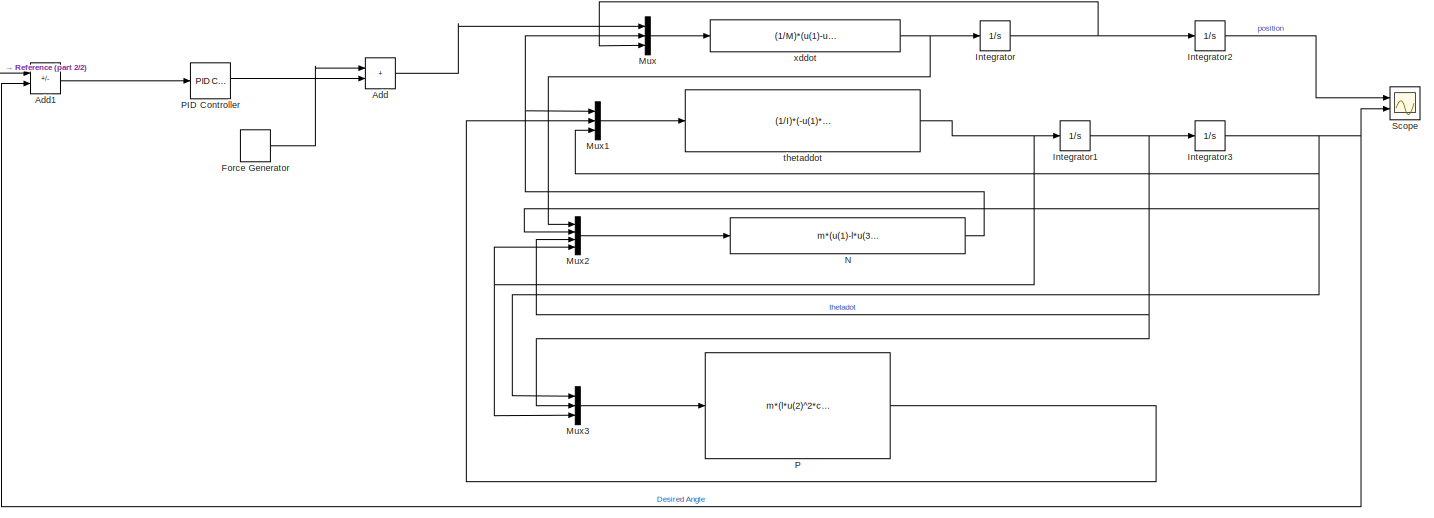
[diagram: root canvas - part 1/2, most of the canvas]
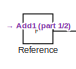
[diagram: root canvas - part 2/2, top left region]
MODEL slx_c1ed0ce0cb48
KIND model
CONFIG AbsTol = auto
CONFIG EnableMultiTasking = off
CONFIG FixedStep = auto
CONFIG MaxStep = auto
CONFIG MinStep = auto
CONFIG RelTol = 1e-3
CONFIG SampleTimeConstraint = Unconstrained
CONFIG Solver = VariableStepAuto
CONFIG SolverName = VariableStepAuto
CONFIG StartTime = 0.0
CONFIG StopTime = 20
WORKSPACE source: mxarray member
WORKSPACE I = 0.006
WORKSPACE M = 0.5
WORKSPACE b = 0.1
WORKSPACE g = 9.8
WORKSPACE l = 0.25
WORKSPACE m = 0.2
BLOCK [Constant]  Reference
  Value = pi
BLOCK [Sum] Add
  IconShape = rectangular
  Ports = [2, 1]
BLOCK [Sum] Add1
  IconShape = rectangular
  Inputs = +-
  Ports = [2, 1]
BLOCK [DiscretePulseGenerator] Force Generator
  Amplitude = 1000
  Period = 10
  Ports = [0, 1]
  PulseType = Time based
  PulseWidth = 0.01
BLOCK [Integrator] Integrator
  ContinuousStateAttributes = 'xdot'
  Ports = [1, 1]
BLOCK [Integrator] Integrator1
  ContinuousStateAttributes = 'thetadot'
  Ports = [1, 1]
BLOCK [Integrator] Integrator2
  ContinuousStateAttributes = 'x'
  Ports = [1, 1]
BLOCK [Integrator] Integrator3
  ContinuousStateAttributes = 'theta'
  InitialCondition = pi
  Ports = [1, 1]
BLOCK [Mux] Mux
  DisplayOption = bar
  Inputs = 3
  Ports = [3, 1]
BLOCK [Mux] Mux1
  DisplayOption = bar
  Inputs = 3
  Ports = [3, 1]
BLOCK [Mux] Mux2
  DisplayOption = bar
  Ports = [4, 1]
BLOCK [Mux] Mux3
  DisplayOption = bar
  Inputs = 3
  Ports = [3, 1]
BLOCK [Fcn] N
  Expr = m*(u(1)-l*u(3)^2*sin(u(2))+l*u(4)*cos(u(2)))
BLOCK [Fcn] P
  Expr = m*(l*u(2)^2*cos(u(1))+l*u(3)*sin(u(1))+g)
BLOCK [Reference] PID Controller  REF=simulink/Continuous/PID Controller
  Ports = [1, 1]
  SourceBlock = simulink/Continuous/PID Controller
  SourceProductBaseCode = SL
  SourceType = PID 1dof
BLOCK [Scope] Scope
  Floating = off
  NumInputPorts = 2
  Ports = [2]
  ScopeSpecificationString = Simulink.scopes.TimeScopeBlockCfg('CurrentConfiguration', extmgr.ConfigurationSet(extmgr.Configuration('Core','General UI',true),extmgr.Configuration('Core','Source UI',true),extmgr.Configuration('Sources','WiredSimulink',true),extmgr.Configuration('Visuals','Time Domain',true,'SerializedDisplays',{struct('MinYLimReal','-1.18958','MaxYLimReal','0.15826','YLabelReal','','MinYLimMag','0.00000','MaxY...<+2004ch>
BLOCK [Fcn] thetaddot
  Expr = (1/I)*(-u(1)*l*cos(u(3))-u(2)*l*sin(u(3)))
BLOCK [Fcn] xddot
  Expr = (1/M)*(u(1)-u(2)-b*u(3))
LINE  Reference:1 -> Add1:1
LINE Add1:1 -> PID Controller:1
LINE Add:1 -> Mux:1
LINE Force Generator:1 -> Add:1
NET Integrator1:1 -> Integrator3:1, Mux2:3, Mux3:2
LINE Integrator2:1 -> Scope:1
NET Integrator3:1 -> Add1:2, Mux1:3, Mux2:2, Mux3:1, Scope:2
NET Integrator:1 -> Integrator2:1, Mux:3
LINE Mux1:1 -> thetaddot:1
LINE Mux2:1 -> N:1
LINE Mux3:1 -> P:1
LINE Mux:1 -> xddot:1
NET N:1 -> Mux1:1, Mux:2
LINE P:1 -> Mux1:2
LINE PID Controller:1 -> Add:2
NET thetaddot:1 -> Integrator1:1, Mux2:4, Mux3:3
NET xddot:1 -> Integrator:1, Mux2:1
note: NET lines group one-source signal fan-out (src -> all destinations, sorted); 1:1 wires keep LINE
